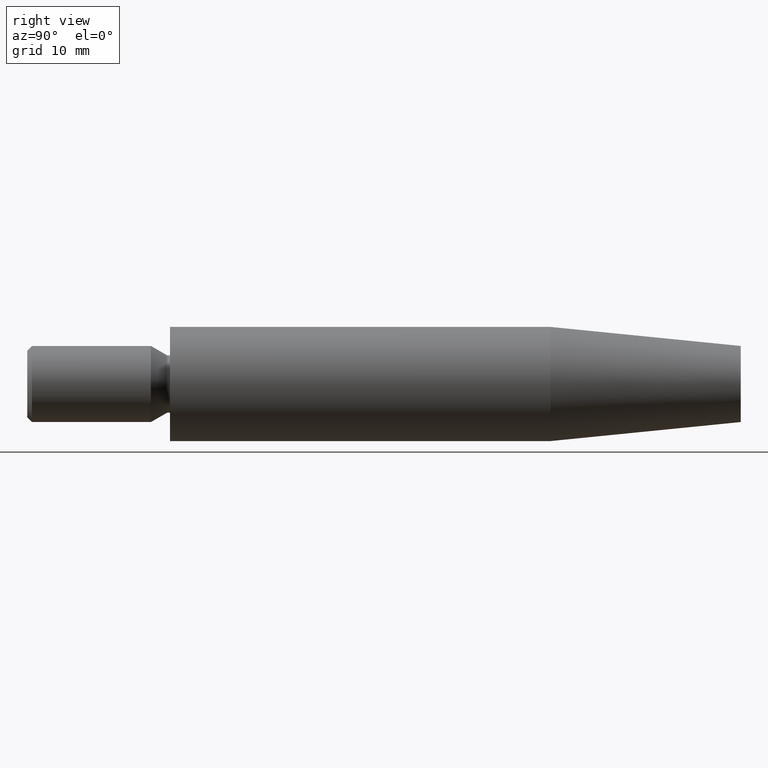
[diagram: clean part render]
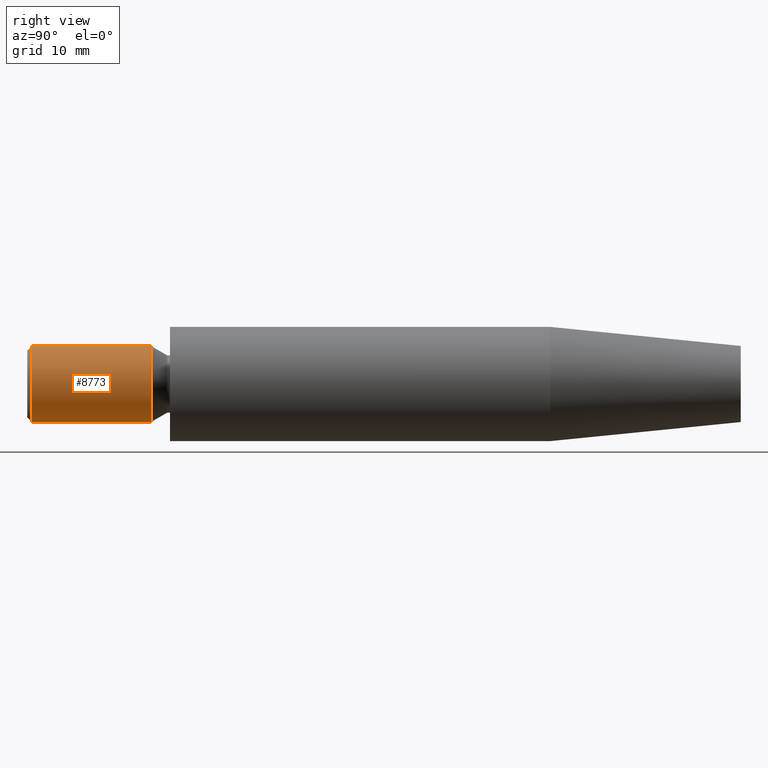
[diagram: same view with one face highlighted and labeled with its STEP entity id]
A machine part, right view. The second image highlights one B-rep face of the part: STEP entity #8773.
In plain terms, the highlighted cylindrical surface (bore or boss wall) has radius 4 mm, axis along (-0, -1, -0).
Its self-contained STEP definition (entity closure, byte-faithful):
#692 = VERTEX_POINT ( 'NONE', #11182 ) ;
#865 = DIRECTION ( 'NONE',  ( 0.000000000000000000, 0.000000000000000000, -1.000000000000000000 ) ) ;
#1143 = FACE_OUTER_BOUND ( 'NONE', #11079, .T. ) ;
#1144 = DIRECTION ( 'NONE',  ( 0.000000000000000000, 0.000000000000000000, -1.000000000000000000 ) ) ;
#2174 = DIRECTION ( 'NONE',  ( -0.000000000000000000, -1.000000000000000000, -0.000000000000000000 ) ) ;
#4183 = ORIENTED_EDGE ( 'NONE', *, *, #5942, .T. ) ;
#4651 = AXIS2_PLACEMENT_3D ( 'NONE', #9861, #6827, #5944 ) ;
#5812 = CARTESIAN_POINT ( 'NONE',  ( 0.000000000000000000, -15.00000000000000355, 0.000000000000000000 ) ) ;
#5942 = EDGE_CURVE ( 'NONE', #692, #692, #7284, .T. ) ;
#5944 = DIRECTION ( 'NONE',  ( 0.000000000000000000, 0.000000000000000000, -1.000000000000000000 ) ) ;
#6568 = FACE_OUTER_BOUND ( 'NONE', #10811, .T. ) ;
#6816 = DIRECTION ( 'NONE',  ( -0.000000000000000000, -1.000000000000000000, -0.000000000000000000 ) ) ;
#6827 = DIRECTION ( 'NONE',  ( 0.000000000000000000, 1.000000000000000000, 0.000000000000000000 ) ) ;
#7200 = CIRCLE ( 'NONE', #8196, 4.000000000000000000 ) ;
#7284 = CIRCLE ( 'NONE', #4651, 4.000000000000000888 ) ;
#7696 = ORIENTED_EDGE ( 'NONE', *, *, #8369, .T. ) ;
#7971 = VERTEX_POINT ( 'NONE', #9216 ) ;
#8196 = AXIS2_PLACEMENT_3D ( 'NONE', #9117, #2174, #1144 ) ;
#8369 = EDGE_CURVE ( 'NONE', #7971, #7971, #7200, .T. ) ;
#8749 = CYLINDRICAL_SURFACE ( 'NONE', #11471, 4.000000000000000888 ) ;
#8773 = ADVANCED_FACE ( 'NONE', ( #6568, #1143 ), #8749, .T. ) ;
#9117 = CARTESIAN_POINT ( 'NONE',  ( 0.000000000000000000, -2.000000000000000000, 0.000000000000000000 ) ) ;
#9216 = CARTESIAN_POINT ( 'NONE',  ( 0.000000000000000000, -2.000000000000000000, -4.000000000000000000 ) ) ;
#9861 = CARTESIAN_POINT ( 'NONE',  ( 0.000000000000000000, -14.49999999999999822, 0.000000000000000000 ) ) ;
#10811 = EDGE_LOOP ( 'NONE', ( #4183 ) ) ;
#11079 = EDGE_LOOP ( 'NONE', ( #7696 ) ) ;
#11182 = CARTESIAN_POINT ( 'NONE',  ( 0.000000000000000000, -14.49999999999999822, -4.000000000000000888 ) ) ;
#11471 = AXIS2_PLACEMENT_3D ( 'NONE', #5812, #6816, #865 ) ;